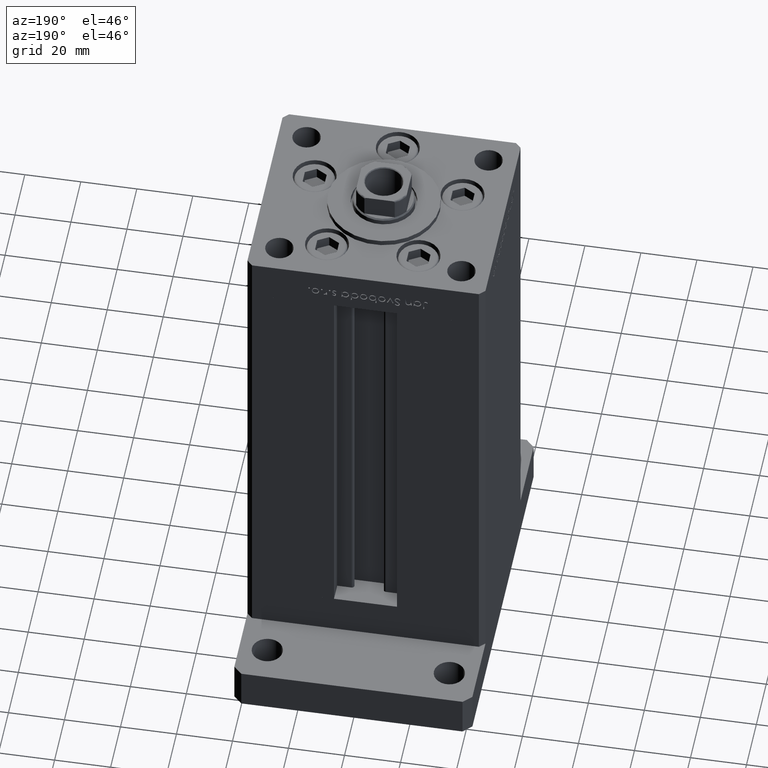
[diagram: clean part render]
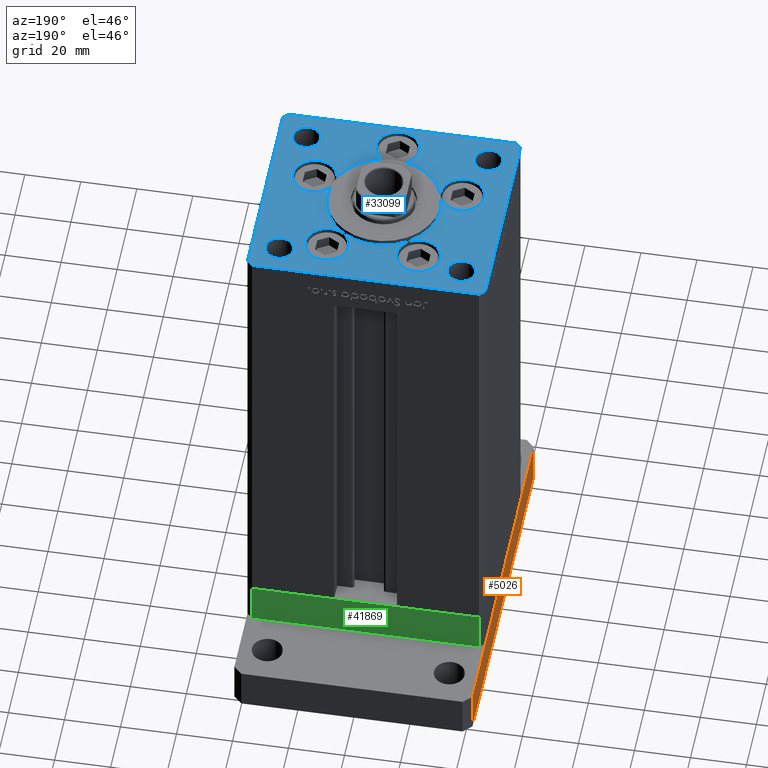
[diagram: same view with three faces highlighted in distinct colors, each labeled with its STEP entity id]
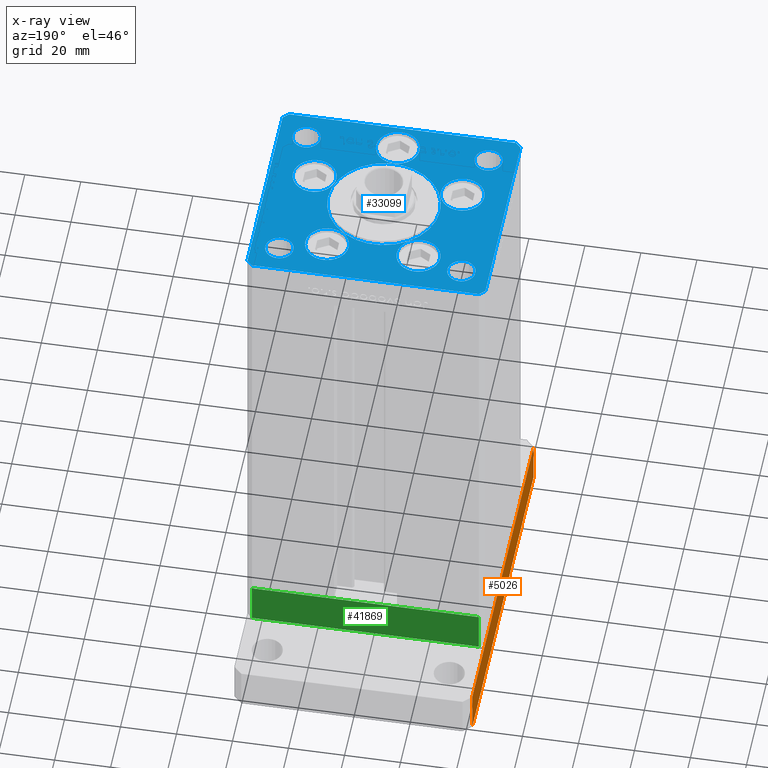
[diagram: x-ray of the same camera — body ghosted, the three highlighted faces saturated]
A machine part, auxiliary view with three faces highlighted in distinct colors.
The next image is the same camera in x-ray (body ghosted, the three faces saturated) — at least one of them is partly hidden behind the body in this view.
Their STEP definitions:

[orange] entity #5026 — the highlighted planar face has unit normal (1, 0, 0).
#1472 = DIRECTION ( 'NONE',  ( -0.000000000000000000, -0.000000000000000000, -1.000000000000000000 ) ) ;
#2985 = LINE ( 'NONE', #24307, #19167 ) ;
#5026 = ADVANCED_FACE ( 'NONE', ( #42562 ), #21354, .F. ) ;
#5973 = LINE ( 'NONE', #18159, #53177 ) ;
#6371 = DIRECTION ( 'NONE',  ( -0.000000000000000000, -0.000000000000000000, -1.000000000000000000 ) ) ;
#6439 = EDGE_CURVE ( 'NONE', #31403, #16941, #43560, .T. ) ;
#6586 = EDGE_CURVE ( 'NONE', #14369, #29579, #41659, .T. ) ;
#6642 = CARTESIAN_POINT ( 'NONE',  ( -42.50000000000002132, 62.00000000000000711, 15.00000000000000000 ) ) ;
#7460 = ORIENTED_EDGE ( 'NONE', *, *, #31652, .T. ) ;
#9450 = ORIENTED_EDGE ( 'NONE', *, *, #6439, .T. ) ;
#11461 = EDGE_LOOP ( 'NONE', ( #7460, #17614, #52857, #9450 ) ) ;
#14369 = VERTEX_POINT ( 'NONE', #19037 ) ;
#16941 = VERTEX_POINT ( 'NONE', #46276 ) ;
#17614 = ORIENTED_EDGE ( 'NONE', *, *, #6586, .F. ) ;
#18159 = CARTESIAN_POINT ( 'NONE',  ( -42.50000000000002132, 62.00000000000000711, 15.00000000000000000 ) ) ;
#19037 = CARTESIAN_POINT ( 'NONE',  ( -42.49999999999999289, -62.00000000000001421, 15.00000000000000000 ) ) ;
#19167 = VECTOR ( 'NONE', #35876, 1000.000000000000000 ) ;
#19263 = AXIS2_PLACEMENT_3D ( 'NONE', #25656, #42303, #30444 ) ;
#21354 = PLANE ( 'NONE',  #19263 ) ;
#23922 = EDGE_CURVE ( 'NONE', #31403, #14369, #5973, .T. ) ;
#24307 = CARTESIAN_POINT ( 'NONE',  ( -42.50000000000002132, 62.00000000000000711, 0.000000000000000000 ) ) ;
#25656 = CARTESIAN_POINT ( 'NONE',  ( -42.50000000000002132, 62.00000000000000711, 15.00000000000000000 ) ) ;
#26042 = CARTESIAN_POINT ( 'NONE',  ( -42.49999999999999289, -62.00000000000001421, 15.00000000000000000 ) ) ;
#29579 = VERTEX_POINT ( 'NONE', #34543 ) ;
#30444 = DIRECTION ( 'NONE',  ( -2.238352872228137677E-16, 1.000000000000000000, 0.000000000000000000 ) ) ;
#31403 = VERTEX_POINT ( 'NONE', #34037 ) ;
#31652 = EDGE_CURVE ( 'NONE', #16941, #29579, #2985, .T. ) ;
#34037 = CARTESIAN_POINT ( 'NONE',  ( -42.50000000000002132, 62.00000000000000711, 15.00000000000000000 ) ) ;
#34543 = CARTESIAN_POINT ( 'NONE',  ( -42.49999999999999289, -62.00000000000001421, 0.000000000000000000 ) ) ;
#35876 = DIRECTION ( 'NONE',  ( 2.238352872228137677E-16, -1.000000000000000000, 0.000000000000000000 ) ) ;
#38181 = VECTOR ( 'NONE', #1472, 1000.000000000000000 ) ;
#39118 = DIRECTION ( 'NONE',  ( 2.238352872228137677E-16, -1.000000000000000000, 0.000000000000000000 ) ) ;
#41659 = LINE ( 'NONE', #26042, #38181 ) ;
#42303 = DIRECTION ( 'NONE',  ( 1.000000000000000000, 2.238352872228137677E-16, -0.000000000000000000 ) ) ;
#42562 = FACE_OUTER_BOUND ( 'NONE', #11461, .T. ) ;
#43560 = LINE ( 'NONE', #6642, #52795 ) ;
#46276 = CARTESIAN_POINT ( 'NONE',  ( -42.50000000000002132, 62.00000000000000711, 0.000000000000000000 ) ) ;
#52795 = VECTOR ( 'NONE', #6371, 1000.000000000000000 ) ;
#52857 = ORIENTED_EDGE ( 'NONE', *, *, #23922, .F. ) ;
#53177 = VECTOR ( 'NONE', #39118, 1000.000000000000000 ) ;

[blue] entity #33099 — the highlighted planar face has unit normal (0, 0, 1).
#269 = CARTESIAN_POINT ( 'NONE',  ( 42.50000000000000711, -35.49999999999992895, 0.000000000000000000 ) ) ;
#581 = EDGE_CURVE ( 'NONE', #47033, #20763, #44139, .T. ) ;
#624 = VERTEX_POINT ( 'NONE', #46712 ) ;
#1023 = CARTESIAN_POINT ( 'NONE',  ( -40.50000000000000711, -37.50000000000003553, 0.000000000000000000 ) ) ;
#1150 = EDGE_CURVE ( 'NONE', #32788, #28951, #8021, .T. ) ;
#1168 = DIRECTION ( 'NONE',  ( 0.000000000000000000, 0.000000000000000000, 1.000000000000000000 ) ) ;
#1654 = EDGE_CURVE ( 'NONE', #14208, #50545, #23531, .T. ) ;
#1712 = LINE ( 'NONE', #39169, #14761 ) ;
#1813 = DIRECTION ( 'NONE',  ( -0.000000000000000000, 0.000000000000000000, 1.000000000000000000 ) ) ;
#1834 = ORIENTED_EDGE ( 'NONE', *, *, #36966, .T. ) ;
#1932 = AXIS2_PLACEMENT_3D ( 'NONE', #50759, #22239, #46981 ) ;
#2438 = CARTESIAN_POINT ( 'NONE',  ( -7.750000000000000000, -28.00000000000000000, 0.000000000000000000 ) ) ;
#2642 = DIRECTION ( 'NONE',  ( -1.000000000000000000, 0.000000000000000000, 0.000000000000000000 ) ) ;
#2739 = EDGE_LOOP ( 'NONE', ( #3082, #30686 ) ) ;
#3007 = ORIENTED_EDGE ( 'NONE', *, *, #46280, .F. ) ;
#3082 = ORIENTED_EDGE ( 'NONE', *, *, #6773, .F. ) ;
#3273 = CARTESIAN_POINT ( 'NONE',  ( 40.50000000000000711, 37.50000000000000711, 0.000000000000000000 ) ) ;
#3742 = CARTESIAN_POINT ( 'NONE',  ( 16.32291334290544071, 22.74999999999999289, 0.000000000000000000 ) ) ;
#4087 = CARTESIAN_POINT ( 'NONE',  ( -40.50000000000000711, -37.50000000000003553, 0.000000000000000000 ) ) ;
#4584 = AXIS2_PLACEMENT_3D ( 'NONE', #3742, #24808, #28298 ) ;
#5121 = CARTESIAN_POINT ( 'NONE',  ( 40.50000000000001421, -37.49999999999992184, 0.000000000000000000 ) ) ;
#5452 = VECTOR ( 'NONE', #48300, 1000.000000000000000 ) ;
#5638 = EDGE_CURVE ( 'NONE', #47039, #6311, #38141, .T. ) ;
#5697 = CARTESIAN_POINT ( 'NONE',  ( 0.000000000000000000, -28.00000000000000000, 0.000000000000000000 ) ) ;
#5704 = DIRECTION ( 'NONE',  ( 0.7071067811865487940, -0.7071067811865463515, 0.000000000000000000 ) ) ;
#5987 = AXIS2_PLACEMENT_3D ( 'NONE', #31439, #47882, #36546 ) ;
#6128 = FACE_BOUND ( 'NONE', #42350, .T. ) ;
#6283 = AXIS2_PLACEMENT_3D ( 'NONE', #8983, #45629, #20879 ) ;
#6289 = DIRECTION ( 'NONE',  ( -0.7071067811865524577, 0.7071067811865426878, 0.000000000000000000 ) ) ;
#6311 = VERTEX_POINT ( 'NONE', #39778 ) ;
#6773 = EDGE_CURVE ( 'NONE', #25534, #24805, #33025, .T. ) ;
#7029 = CIRCLE ( 'NONE', #7883, 7.750000000000000000 ) ;
#7074 = CIRCLE ( 'NONE', #13146, 5.000000000000000888 ) ;
#7373 = DIRECTION ( 'NONE',  ( -1.000000000000000000, 0.000000000000000000, 0.000000000000000000 ) ) ;
#7388 = EDGE_LOOP ( 'NONE', ( #36484, #3007 ) ) ;
#7528 = CIRCLE ( 'NONE', #31859, 7.750000000000000000 ) ;
#7883 = AXIS2_PLACEMENT_3D ( 'NONE', #38102, #1168, #30032 ) ;
#7961 = AXIS2_PLACEMENT_3D ( 'NONE', #47897, #1813, #50880 ) ;
#8021 = CIRCLE ( 'NONE', #33845, 5.000000000000004441 ) ;
#8786 = DIRECTION ( 'NONE',  ( 9.773090005503145261E-17, 1.000000000000000000, 0.000000000000000000 ) ) ;
#8983 = CARTESIAN_POINT ( 'NONE',  ( 16.32291334290544071, 22.74999999999999289, 0.000000000000000000 ) ) ;
#9001 = ORIENTED_EDGE ( 'NONE', *, *, #45479, .T. ) ;
#9053 = DIRECTION ( 'NONE',  ( 1.000000000000000000, 0.000000000000000000, 0.000000000000000000 ) ) ;
#9334 = VERTEX_POINT ( 'NONE', #2438 ) ;
#9356 = VERTEX_POINT ( 'NONE', #35322 ) ;
#9593 = DIRECTION ( 'NONE',  ( 0.000000000000000000, 0.000000000000000000, 1.000000000000000000 ) ) ;
#9812 = AXIS2_PLACEMENT_3D ( 'NONE', #52643, #32696, #15763 ) ;
#9933 = PLANE ( 'NONE',  #7961 ) ;
#10355 = DIRECTION ( 'NONE',  ( 1.000000000000000000, 0.000000000000000000, 0.000000000000000000 ) ) ;
#10494 = ORIENTED_EDGE ( 'NONE', *, *, #1654, .T. ) ;
#10955 = CARTESIAN_POINT ( 'NONE',  ( 24.07291334290544071, 22.74999999999999289, 0.000000000000000000 ) ) ;
#11318 = CARTESIAN_POINT ( 'NONE',  ( -32.50000000000000000, 27.50000000000000711, 0.000000000000000000 ) ) ;
#11506 = DIRECTION ( 'NONE',  ( 1.000000000000000000, 0.000000000000000000, 0.000000000000000000 ) ) ;
#11664 = CIRCLE ( 'NONE', #40927, 5.000000000000004441 ) ;
#12121 = DIRECTION ( 'NONE',  ( -0.000000000000000000, -0.000000000000000000, -1.000000000000000000 ) ) ;
#12241 = EDGE_LOOP ( 'NONE', ( #18189, #26909 ) ) ;
#12383 = VERTEX_POINT ( 'NONE', #13309 ) ;
#12655 = CIRCLE ( 'NONE', #13508, 20.00000000000000000 ) ;
#13109 = CARTESIAN_POINT ( 'NONE',  ( 32.50000000000000000, -27.50000000000000355, 0.000000000000000000 ) ) ;
#13146 = AXIS2_PLACEMENT_3D ( 'NONE', #36832, #28491, #11506 ) ;
#13309 = CARTESIAN_POINT ( 'NONE',  ( 18.64865316429777664, -9.333333333333328596, 0.000000000000000000 ) ) ;
#13449 = AXIS2_PLACEMENT_3D ( 'NONE', #52769, #43621, #2642 ) ;
#13508 = AXIS2_PLACEMENT_3D ( 'NONE', #22166, #39078, #39345 ) ;
#13657 = CARTESIAN_POINT ( 'NONE',  ( 32.50000000000000000, 27.49999999999999645, 0.000000000000000000 ) ) ;
#14208 = VERTEX_POINT ( 'NONE', #34114 ) ;
#14363 = EDGE_CURVE ( 'NONE', #50545, #41621, #51345, .T. ) ;
#14603 = DIRECTION ( 'NONE',  ( 1.000000000000000000, 0.000000000000000000, 0.000000000000000000 ) ) ;
#14761 = VECTOR ( 'NONE', #6289, 1000.000000000000000 ) ;
#14888 = EDGE_CURVE ( 'NONE', #42906, #9356, #12655, .T. ) ;
#15046 = FACE_BOUND ( 'NONE', #2739, .T. ) ;
#15161 = VERTEX_POINT ( 'NONE', #1023 ) ;
#15238 = CARTESIAN_POINT ( 'NONE',  ( 42.50000000000001421, 35.50000000000002132, 0.000000000000000000 ) ) ;
#15264 = ORIENTED_EDGE ( 'NONE', *, *, #42877, .F. ) ;
#15359 = CIRCLE ( 'NONE', #16250, 4.999999999999997335 ) ;
#15763 = DIRECTION ( 'NONE',  ( 1.000000000000000000, 0.000000000000000000, 0.000000000000000000 ) ) ;
#16046 = CARTESIAN_POINT ( 'NONE',  ( -26.39865316429777664, -9.333333333333330373, 0.000000000000000000 ) ) ;
#16250 = AXIS2_PLACEMENT_3D ( 'NONE', #13109, #29542, #44436 ) ;
#17277 = EDGE_CURVE ( 'NONE', #12383, #44555, #49695, .T. ) ;
#17394 = DIRECTION ( 'NONE',  ( 0.000000000000000000, 0.000000000000000000, 1.000000000000000000 ) ) ;
#17539 = ORIENTED_EDGE ( 'NONE', *, *, #21684, .T. ) ;
#17592 = ORIENTED_EDGE ( 'NONE', *, *, #581, .F. ) ;
#17621 = EDGE_CURVE ( 'NONE', #20763, #47033, #48872, .T. ) ;
#17649 = CARTESIAN_POINT ( 'NONE',  ( 0.000000000000000000, -6.938893903907228378E-15, 0.000000000000000000 ) ) ;
#17964 = CIRCLE ( 'NONE', #22267, 4.999999999999997335 ) ;
#18189 = ORIENTED_EDGE ( 'NONE', *, *, #47482, .F. ) ;
#18214 = CARTESIAN_POINT ( 'NONE',  ( 26.39865316429777664, -9.333333333333330373, 0.000000000000000000 ) ) ;
#18230 = CARTESIAN_POINT ( 'NONE',  ( 37.50000000000000000, 27.49999999999999645, 0.000000000000000000 ) ) ;
#18289 = VECTOR ( 'NONE', #49553, 1000.000000000000000 ) ;
#19363 = EDGE_CURVE ( 'NONE', #9334, #48022, #47187, .T. ) ;
#19765 = CARTESIAN_POINT ( 'NONE',  ( -18.64865316429777664, -9.333333333333330373, 0.000000000000000000 ) ) ;
#19901 = ORIENTED_EDGE ( 'NONE', *, *, #39931, .T. ) ;
#19933 = EDGE_CURVE ( 'NONE', #24856, #42022, #17964, .T. ) ;
#20216 = EDGE_CURVE ( 'NONE', #37703, #624, #15359, .T. ) ;
#20304 = ORIENTED_EDGE ( 'NONE', *, *, #5638, .F. ) ;
#20420 = VERTEX_POINT ( 'NONE', #15238 ) ;
#20580 = DIRECTION ( 'NONE',  ( 1.000000000000000000, 1.370645709413773283E-15, 0.000000000000000000 ) ) ;
#20763 = VERTEX_POINT ( 'NONE', #19765 ) ;
#20879 = DIRECTION ( 'NONE',  ( 1.000000000000000000, 0.000000000000000000, 0.000000000000000000 ) ) ;
#20905 = DIRECTION ( 'NONE',  ( 1.000000000000000000, 0.000000000000000000, 0.000000000000000000 ) ) ;
#20992 = DIRECTION ( 'NONE',  ( 1.000000000000000000, 0.000000000000000000, 0.000000000000000000 ) ) ;
#21684 = EDGE_CURVE ( 'NONE', #15161, #29779, #45595, .T. ) ;
#21746 = VECTOR ( 'NONE', #8786, 1000.000000000000000 ) ;
#21881 = ORIENTED_EDGE ( 'NONE', *, *, #28458, .T. ) ;
#22047 = EDGE_LOOP ( 'NONE', ( #9001, #33250 ) ) ;
#22051 = DIRECTION ( 'NONE',  ( 0.000000000000000000, 0.000000000000000000, 1.000000000000000000 ) ) ;
#22055 = CIRCLE ( 'NONE', #28020, 7.750000000000000000 ) ;
#22166 = CARTESIAN_POINT ( 'NONE',  ( 0.000000000000000000, -6.938893903907228378E-15, 0.000000000000000000 ) ) ;
#22239 = DIRECTION ( 'NONE',  ( 0.000000000000000000, 0.000000000000000000, 1.000000000000000000 ) ) ;
#22267 = AXIS2_PLACEMENT_3D ( 'NONE', #13657, #9593, #30596 ) ;
#22611 = FACE_BOUND ( 'NONE', #33313, .T. ) ;
#22925 = CIRCLE ( 'NONE', #34923, 20.00000000000000000 ) ;
#23004 = EDGE_LOOP ( 'NONE', ( #24600, #35841 ) ) ;
#23136 = CARTESIAN_POINT ( 'NONE',  ( 37.50000000000000000, -27.50000000000000355, 0.000000000000000000 ) ) ;
#23171 = CARTESIAN_POINT ( 'NONE',  ( -40.50000000000000000, 37.49999999999997158, 0.000000000000000000 ) ) ;
#23531 = LINE ( 'NONE', #3273, #5452 ) ;
#24600 = ORIENTED_EDGE ( 'NONE', *, *, #25939, .F. ) ;
#24805 = VERTEX_POINT ( 'NONE', #33305 ) ;
#24808 = DIRECTION ( 'NONE',  ( 0.000000000000000000, 0.000000000000000000, 1.000000000000000000 ) ) ;
#24856 = VERTEX_POINT ( 'NONE', #18230 ) ;
#25093 = ORIENTED_EDGE ( 'NONE', *, *, #38667, .F. ) ;
#25528 = EDGE_CURVE ( 'NONE', #49831, #41556, #52458, .T. ) ;
#25534 = VERTEX_POINT ( 'NONE', #35478 ) ;
#25566 = CARTESIAN_POINT ( 'NONE',  ( 26.39865316429777664, -9.333333333333330373, 0.000000000000000000 ) ) ;
#25697 = AXIS2_PLACEMENT_3D ( 'NONE', #16046, #29489, #20905 ) ;
#25939 = EDGE_CURVE ( 'NONE', #44555, #12383, #7528, .T. ) ;
#26240 = AXIS2_PLACEMENT_3D ( 'NONE', #30316, #50277, #9053 ) ;
#26788 = ORIENTED_EDGE ( 'NONE', *, *, #20216, .T. ) ;
#26909 = ORIENTED_EDGE ( 'NONE', *, *, #14888, .F. ) ;
#27015 = EDGE_LOOP ( 'NONE', ( #32593, #15264 ) ) ;
#27097 = CARTESIAN_POINT ( 'NONE',  ( -40.50000000000000000, 37.49999999999997158, 0.000000000000000000 ) ) ;
#27169 = FACE_BOUND ( 'NONE', #7388, .T. ) ;
#27878 = CARTESIAN_POINT ( 'NONE',  ( -32.50000000000000000, 27.50000000000000711, 0.000000000000000000 ) ) ;
#28020 = AXIS2_PLACEMENT_3D ( 'NONE', #33521, #17394, #33787 ) ;
#28239 = EDGE_LOOP ( 'NONE', ( #26788, #35882 ) ) ;
#28298 = DIRECTION ( 'NONE',  ( 1.000000000000000000, 0.000000000000000000, 0.000000000000000000 ) ) ;
#28458 = EDGE_CURVE ( 'NONE', #20420, #14208, #1712, .T. ) ;
#28491 = DIRECTION ( 'NONE',  ( 0.000000000000000000, 0.000000000000000000, 1.000000000000000000 ) ) ;
#28951 = VERTEX_POINT ( 'NONE', #32873 ) ;
#29342 = CARTESIAN_POINT ( 'NONE',  ( -42.50000000000000711, 35.50000000000000000, 0.000000000000000000 ) ) ;
#29489 = DIRECTION ( 'NONE',  ( 0.000000000000000000, 0.000000000000000000, 1.000000000000000000 ) ) ;
#29542 = DIRECTION ( 'NONE',  ( -0.000000000000000000, -0.000000000000000000, -1.000000000000000000 ) ) ;
#29779 = VERTEX_POINT ( 'NONE', #5121 ) ;
#30032 = DIRECTION ( 'NONE',  ( 1.000000000000000000, 0.000000000000000000, 0.000000000000000000 ) ) ;
#30316 = CARTESIAN_POINT ( 'NONE',  ( 32.50000000000000000, 27.49999999999999645, 0.000000000000000000 ) ) ;
#30596 = DIRECTION ( 'NONE',  ( 1.000000000000000000, 0.000000000000000000, 0.000000000000000000 ) ) ;
#30686 = ORIENTED_EDGE ( 'NONE', *, *, #33141, .F. ) ;
#30803 = VERTEX_POINT ( 'NONE', #269 ) ;
#31173 = EDGE_LOOP ( 'NONE', ( #19901, #17539, #46369, #1834, #21881, #10494, #32366, #35697 ) ) ;
#31361 = CARTESIAN_POINT ( 'NONE',  ( 27.50000000000000355, 27.49999999999999645, 0.000000000000000000 ) ) ;
#31439 = CARTESIAN_POINT ( 'NONE',  ( -16.32291334290544071, 22.74999999999999289, 0.000000000000000000 ) ) ;
#31452 = FACE_OUTER_BOUND ( 'NONE', #31173, .T. ) ;
#31762 = CARTESIAN_POINT ( 'NONE',  ( -42.50000000000000000, -35.50000000000004263, 0.000000000000000000 ) ) ;
#31859 = AXIS2_PLACEMENT_3D ( 'NONE', #25566, #22051, #20992 ) ;
#32147 = EDGE_CURVE ( 'NONE', #41621, #44758, #50080, .T. ) ;
#32194 = CARTESIAN_POINT ( 'NONE',  ( 40.50000000000001421, -37.49999999999992184, 0.000000000000000000 ) ) ;
#32366 = ORIENTED_EDGE ( 'NONE', *, *, #14363, .T. ) ;
#32593 = ORIENTED_EDGE ( 'NONE', *, *, #19933, .F. ) ;
#32696 = DIRECTION ( 'NONE',  ( 0.000000000000000000, 0.000000000000000000, 1.000000000000000000 ) ) ;
#32788 = VERTEX_POINT ( 'NONE', #35032 ) ;
#32873 = CARTESIAN_POINT ( 'NONE',  ( -27.50000000000000000, 27.50000000000000711, 0.000000000000000000 ) ) ;
#33025 = CIRCLE ( 'NONE', #9812, 5.000000000000000888 ) ;
#33099 = ADVANCED_FACE ( 'NONE', ( #51674, #27169, #39008, #39533, #6128, #22611, #38490, #51936, #15046, #31452, #34442 ), #9933, .T. ) ;
#33141 = EDGE_CURVE ( 'NONE', #24805, #25534, #7074, .T. ) ;
#33241 = DIRECTION ( 'NONE',  ( 0.000000000000000000, 0.000000000000000000, 1.000000000000000000 ) ) ;
#33250 = ORIENTED_EDGE ( 'NONE', *, *, #1150, .T. ) ;
#33305 = CARTESIAN_POINT ( 'NONE',  ( -37.50000000000000711, -27.50000000000000355, 0.000000000000000000 ) ) ;
#33313 = EDGE_LOOP ( 'NONE', ( #51544, #17592 ) ) ;
#33521 = CARTESIAN_POINT ( 'NONE',  ( -16.32291334290544071, 22.74999999999999289, 0.000000000000000000 ) ) ;
#33787 = DIRECTION ( 'NONE',  ( 1.000000000000000000, 0.000000000000000000, 0.000000000000000000 ) ) ;
#33845 = AXIS2_PLACEMENT_3D ( 'NONE', #11318, #12121, #40673 ) ;
#34114 = CARTESIAN_POINT ( 'NONE',  ( 40.50000000000000711, 37.50000000000000711, 0.000000000000000000 ) ) ;
#34442 = FACE_BOUND ( 'NONE', #28239, .T. ) ;
#34884 = ORIENTED_EDGE ( 'NONE', *, *, #35260, .F. ) ;
#34894 = DIRECTION ( 'NONE',  ( -0.7071067811865536790, -0.7071067811865414665, 0.000000000000000000 ) ) ;
#34923 = AXIS2_PLACEMENT_3D ( 'NONE', #17649, #33241, #45637 ) ;
#35032 = CARTESIAN_POINT ( 'NONE',  ( -37.50000000000000711, 27.50000000000000711, 0.000000000000000000 ) ) ;
#35046 = CIRCLE ( 'NONE', #13449, 4.999999999999997335 ) ;
#35067 = LINE ( 'NONE', #46148, #44153 ) ;
#35260 = EDGE_CURVE ( 'NONE', #48022, #9334, #7029, .T. ) ;
#35322 = CARTESIAN_POINT ( 'NONE',  ( -20.00000000000000000, -6.938893903907228378E-15, 0.000000000000000000 ) ) ;
#35478 = CARTESIAN_POINT ( 'NONE',  ( -27.50000000000000000, -27.50000000000000355, 0.000000000000000000 ) ) ;
#35697 = ORIENTED_EDGE ( 'NONE', *, *, #32147, .T. ) ;
#35841 = ORIENTED_EDGE ( 'NONE', *, *, #17277, .F. ) ;
#35882 = ORIENTED_EDGE ( 'NONE', *, *, #51443, .T. ) ;
#36213 = EDGE_CURVE ( 'NONE', #29779, #30803, #45129, .T. ) ;
#36484 = ORIENTED_EDGE ( 'NONE', *, *, #25528, .F. ) ;
#36546 = DIRECTION ( 'NONE',  ( 1.000000000000000000, 0.000000000000000000, 0.000000000000000000 ) ) ;
#36832 = CARTESIAN_POINT ( 'NONE',  ( -32.50000000000000000, -27.50000000000000355, 0.000000000000000000 ) ) ;
#36966 = EDGE_CURVE ( 'NONE', #30803, #20420, #46238, .T. ) ;
#37703 = VERTEX_POINT ( 'NONE', #23136 ) ;
#37878 = CARTESIAN_POINT ( 'NONE',  ( 42.50000000000000711, -35.49999999999992895, 0.000000000000000000 ) ) ;
#38102 = CARTESIAN_POINT ( 'NONE',  ( 0.000000000000000000, -28.00000000000000000, 0.000000000000000000 ) ) ;
#38141 = CIRCLE ( 'NONE', #6283, 7.750000000000000000 ) ;
#38401 = CARTESIAN_POINT ( 'NONE',  ( -24.07291334290544071, 22.74999999999999289, 0.000000000000000000 ) ) ;
#38490 = FACE_BOUND ( 'NONE', #22047, .T. ) ;
#38667 = EDGE_CURVE ( 'NONE', #6311, #47039, #40738, .T. ) ;
#39008 = FACE_BOUND ( 'NONE', #42090, .T. ) ;
#39078 = DIRECTION ( 'NONE',  ( 0.000000000000000000, 0.000000000000000000, 1.000000000000000000 ) ) ;
#39169 = CARTESIAN_POINT ( 'NONE',  ( 42.50000000000001421, 35.50000000000002132, 0.000000000000000000 ) ) ;
#39305 = CARTESIAN_POINT ( 'NONE',  ( -8.572913342905440715, 22.74999999999999289, 0.000000000000000000 ) ) ;
#39345 = DIRECTION ( 'NONE',  ( 1.000000000000000000, 0.000000000000000000, 0.000000000000000000 ) ) ;
#39533 = FACE_BOUND ( 'NONE', #23004, .T. ) ;
#39778 = CARTESIAN_POINT ( 'NONE',  ( 8.572913342905442491, 22.74999999999999289, 0.000000000000000000 ) ) ;
#39931 = EDGE_CURVE ( 'NONE', #44758, #15161, #35067, .T. ) ;
#40673 = DIRECTION ( 'NONE',  ( -1.000000000000000000, 0.000000000000000000, 0.000000000000000000 ) ) ;
#40738 = CIRCLE ( 'NONE', #4584, 7.750000000000000000 ) ;
#40927 = AXIS2_PLACEMENT_3D ( 'NONE', #27878, #44294, #7373 ) ;
#41556 = VERTEX_POINT ( 'NONE', #38401 ) ;
#41621 = VERTEX_POINT ( 'NONE', #50327 ) ;
#42022 = VERTEX_POINT ( 'NONE', #31361 ) ;
#42090 = EDGE_LOOP ( 'NONE', ( #20304, #25093 ) ) ;
#42350 = EDGE_LOOP ( 'NONE', ( #34884, #48302 ) ) ;
#42438 = CARTESIAN_POINT ( 'NONE',  ( 20.00000000000000000, -4.489600305612522259E-15, 0.000000000000000000 ) ) ;
#42871 = AXIS2_PLACEMENT_3D ( 'NONE', #5697, #47198, #14603 ) ;
#42877 = EDGE_CURVE ( 'NONE', #42022, #24856, #44274, .T. ) ;
#42906 = VERTEX_POINT ( 'NONE', #42438 ) ;
#43554 = VECTOR ( 'NONE', #34894, 1000.000000000000000 ) ;
#43621 = DIRECTION ( 'NONE',  ( -0.000000000000000000, -0.000000000000000000, -1.000000000000000000 ) ) ;
#44139 = CIRCLE ( 'NONE', #1932, 7.750000000000000000 ) ;
#44153 = VECTOR ( 'NONE', #5704, 1000.000000000000000 ) ;
#44274 = CIRCLE ( 'NONE', #26240, 4.999999999999997335 ) ;
#44294 = DIRECTION ( 'NONE',  ( -0.000000000000000000, -0.000000000000000000, -1.000000000000000000 ) ) ;
#44436 = DIRECTION ( 'NONE',  ( -1.000000000000000000, 0.000000000000000000, 0.000000000000000000 ) ) ;
#44555 = VERTEX_POINT ( 'NONE', #44817 ) ;
#44758 = VERTEX_POINT ( 'NONE', #31762 ) ;
#44817 = CARTESIAN_POINT ( 'NONE',  ( 34.14865316429777664, -9.333333333333330373, 0.000000000000000000 ) ) ;
#45129 = LINE ( 'NONE', #32194, #46674 ) ;
#45407 = DIRECTION ( 'NONE',  ( 0.7071067811865474617, 0.7071067811865474617, 0.000000000000000000 ) ) ;
#45479 = EDGE_CURVE ( 'NONE', #28951, #32788, #11664, .T. ) ;
#45595 = LINE ( 'NONE', #4087, #46266 ) ;
#45629 = DIRECTION ( 'NONE',  ( 0.000000000000000000, 0.000000000000000000, 1.000000000000000000 ) ) ;
#45637 = DIRECTION ( 'NONE',  ( 1.000000000000000000, 0.000000000000000000, 0.000000000000000000 ) ) ;
#46148 = CARTESIAN_POINT ( 'NONE',  ( -42.50000000000000000, -35.50000000000004263, 0.000000000000000000 ) ) ;
#46238 = LINE ( 'NONE', #37878, #21746 ) ;
#46266 = VECTOR ( 'NONE', #20580, 1000.000000000000000 ) ;
#46280 = EDGE_CURVE ( 'NONE', #41556, #49831, #22055, .T. ) ;
#46369 = ORIENTED_EDGE ( 'NONE', *, *, #36213, .T. ) ;
#46674 = VECTOR ( 'NONE', #45407, 1000.000000000000114 ) ;
#46712 = CARTESIAN_POINT ( 'NONE',  ( 27.50000000000000355, -27.50000000000000355, 0.000000000000000000 ) ) ;
#46736 = DIRECTION ( 'NONE',  ( 0.000000000000000000, 0.000000000000000000, 1.000000000000000000 ) ) ;
#46981 = DIRECTION ( 'NONE',  ( 1.000000000000000000, 0.000000000000000000, 0.000000000000000000 ) ) ;
#47033 = VERTEX_POINT ( 'NONE', #51388 ) ;
#47039 = VERTEX_POINT ( 'NONE', #10955 ) ;
#47187 = CIRCLE ( 'NONE', #42871, 7.750000000000000000 ) ;
#47198 = DIRECTION ( 'NONE',  ( 0.000000000000000000, 0.000000000000000000, 1.000000000000000000 ) ) ;
#47482 = EDGE_CURVE ( 'NONE', #9356, #42906, #22925, .T. ) ;
#47882 = DIRECTION ( 'NONE',  ( 0.000000000000000000, 0.000000000000000000, 1.000000000000000000 ) ) ;
#47897 = CARTESIAN_POINT ( 'NONE',  ( 0.000000000000000000, 0.000000000000000000, 0.000000000000000000 ) ) ;
#47946 = AXIS2_PLACEMENT_3D ( 'NONE', #18214, #46736, #10355 ) ;
#48022 = VERTEX_POINT ( 'NONE', #48220 ) ;
#48220 = CARTESIAN_POINT ( 'NONE',  ( 7.750000000000000000, -28.00000000000000000, 0.000000000000000000 ) ) ;
#48300 = DIRECTION ( 'NONE',  ( -1.000000000000000000, -4.283267841918041508E-16, 0.000000000000000000 ) ) ;
#48302 = ORIENTED_EDGE ( 'NONE', *, *, #19363, .F. ) ;
#48872 = CIRCLE ( 'NONE', #25697, 7.750000000000000000 ) ;
#49553 = DIRECTION ( 'NONE',  ( 9.773090005503134168E-17, -1.000000000000000000, 0.000000000000000000 ) ) ;
#49695 = CIRCLE ( 'NONE', #47946, 7.750000000000000000 ) ;
#49831 = VERTEX_POINT ( 'NONE', #39305 ) ;
#50080 = LINE ( 'NONE', #29342, #18289 ) ;
#50277 = DIRECTION ( 'NONE',  ( 0.000000000000000000, 0.000000000000000000, 1.000000000000000000 ) ) ;
#50327 = CARTESIAN_POINT ( 'NONE',  ( -42.50000000000000711, 35.50000000000000000, 0.000000000000000000 ) ) ;
#50545 = VERTEX_POINT ( 'NONE', #23171 ) ;
#50759 = CARTESIAN_POINT ( 'NONE',  ( -26.39865316429777664, -9.333333333333330373, 0.000000000000000000 ) ) ;
#50880 = DIRECTION ( 'NONE',  ( 1.000000000000000000, 0.000000000000000000, 0.000000000000000000 ) ) ;
#51345 = LINE ( 'NONE', #27097, #43554 ) ;
#51388 = CARTESIAN_POINT ( 'NONE',  ( -34.14865316429777664, -9.333333333333328596, 0.000000000000000000 ) ) ;
#51443 = EDGE_CURVE ( 'NONE', #624, #37703, #35046, .T. ) ;
#51544 = ORIENTED_EDGE ( 'NONE', *, *, #17621, .F. ) ;
#51674 = FACE_BOUND ( 'NONE', #12241, .T. ) ;
#51936 = FACE_BOUND ( 'NONE', #27015, .T. ) ;
#52458 = CIRCLE ( 'NONE', #5987, 7.750000000000000000 ) ;
#52643 = CARTESIAN_POINT ( 'NONE',  ( -32.50000000000000000, -27.50000000000000355, 0.000000000000000000 ) ) ;
#52769 = CARTESIAN_POINT ( 'NONE',  ( 32.50000000000000000, -27.50000000000000355, 0.000000000000000000 ) ) ;

[green] entity #41869 — the highlighted planar face has unit normal (0, 1, 0).
#535 = VECTOR ( 'NONE', #15583, 1000.000000000000000 ) ;
#753 = ORIENTED_EDGE ( 'NONE', *, *, #28094, .T. ) ;
#2490 = DIRECTION ( 'NONE',  ( -1.000000000000000000, -3.426614273534436165E-16, 0.000000000000000000 ) ) ;
#2570 = EDGE_CURVE ( 'NONE', #8618, #9086, #51561, .T. ) ;
#8118 = AXIS2_PLACEMENT_3D ( 'NONE', #45691, #42172, #33828 ) ;
#8265 = EDGE_LOOP ( 'NONE', ( #21440, #25549, #25395, #753 ) ) ;
#8618 = VERTEX_POINT ( 'NONE', #37649 ) ;
#9086 = VERTEX_POINT ( 'NONE', #31872 ) ;
#10675 = VERTEX_POINT ( 'NONE', #45536 ) ;
#11177 = LINE ( 'NONE', #35431, #31122 ) ;
#15583 = DIRECTION ( 'NONE',  ( -1.000000000000000000, -3.426614273534436165E-16, 0.000000000000000000 ) ) ;
#17697 = FACE_OUTER_BOUND ( 'NONE', #8265, .T. ) ;
#20897 = VERTEX_POINT ( 'NONE', #36427 ) ;
#21440 = ORIENTED_EDGE ( 'NONE', *, *, #2570, .F. ) ;
#24432 = VECTOR ( 'NONE', #2490, 1000.000000000000000 ) ;
#24821 = LINE ( 'NONE', #53354, #25911 ) ;
#25395 = ORIENTED_EDGE ( 'NONE', *, *, #48928, .T. ) ;
#25549 = ORIENTED_EDGE ( 'NONE', *, *, #35031, .F. ) ;
#25911 = VECTOR ( 'NONE', #41495, 1000.000000000000000 ) ;
#28094 = EDGE_CURVE ( 'NONE', #10675, #9086, #24821, .T. ) ;
#29264 = PLANE ( 'NONE',  #8118 ) ;
#31122 = VECTOR ( 'NONE', #47564, 1000.000000000000000 ) ;
#31187 = CARTESIAN_POINT ( 'NONE',  ( 40.49999999999991473, 37.50000000000000711, -15.00000000000000000 ) ) ;
#31872 = CARTESIAN_POINT ( 'NONE',  ( -40.50000000000000711, 37.49999999999997868, 0.000000000000000000 ) ) ;
#33828 = DIRECTION ( 'NONE',  ( -1.000000000000000000, -3.426614273534436165E-16, 0.000000000000000000 ) ) ;
#35031 = EDGE_CURVE ( 'NONE', #20897, #8618, #11177, .T. ) ;
#35431 = CARTESIAN_POINT ( 'NONE',  ( 40.49999999999991473, 37.50000000000000711, -15.00000000000000000 ) ) ;
#36427 = CARTESIAN_POINT ( 'NONE',  ( 40.49999999999991473, 37.50000000000000711, -15.00000000000000000 ) ) ;
#37649 = CARTESIAN_POINT ( 'NONE',  ( 40.49999999999991473, 37.50000000000000711, 0.000000000000000000 ) ) ;
#39426 = CARTESIAN_POINT ( 'NONE',  ( 40.49999999999991473, 37.50000000000000711, 0.000000000000000000 ) ) ;
#41495 = DIRECTION ( 'NONE',  ( 0.000000000000000000, 0.000000000000000000, 1.000000000000000000 ) ) ;
#41869 = ADVANCED_FACE ( 'NONE', ( #17697 ), #29264, .T. ) ;
#42172 = DIRECTION ( 'NONE',  ( -3.426614273534436165E-16, 1.000000000000000000, 0.000000000000000000 ) ) ;
#45536 = CARTESIAN_POINT ( 'NONE',  ( -40.50000000000000711, 37.49999999999997868, -15.00000000000000000 ) ) ;
#45691 = CARTESIAN_POINT ( 'NONE',  ( 40.49999999999991473, 37.50000000000000711, -15.00000000000000000 ) ) ;
#47564 = DIRECTION ( 'NONE',  ( 0.000000000000000000, 0.000000000000000000, 1.000000000000000000 ) ) ;
#48928 = EDGE_CURVE ( 'NONE', #20897, #10675, #51937, .T. ) ;
#51561 = LINE ( 'NONE', #39426, #24432 ) ;
#51937 = LINE ( 'NONE', #31187, #535 ) ;
#53354 = CARTESIAN_POINT ( 'NONE',  ( -40.50000000000000711, 37.49999999999997868, -15.00000000000000000 ) ) ;